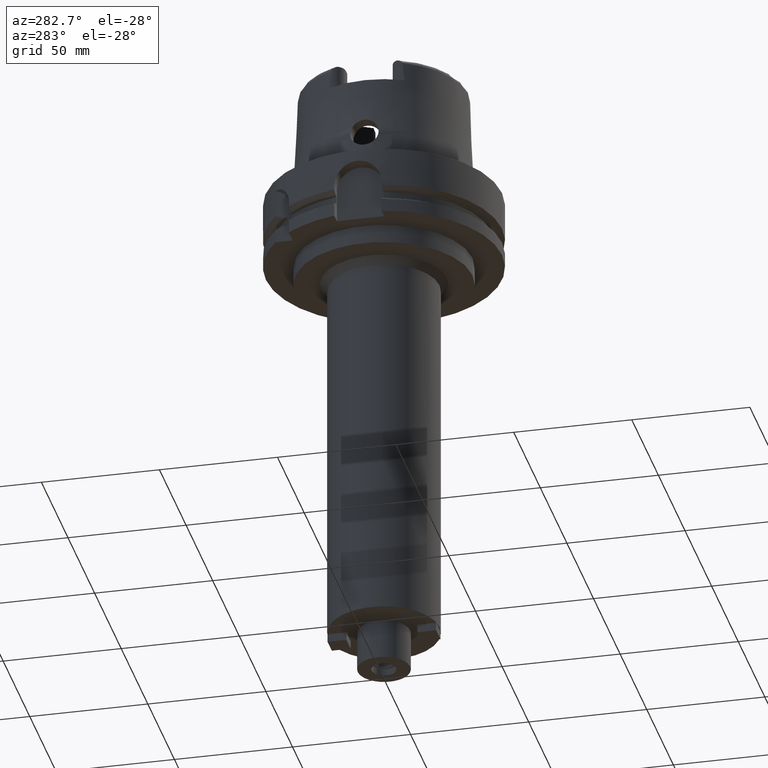
[diagram: clean part render]
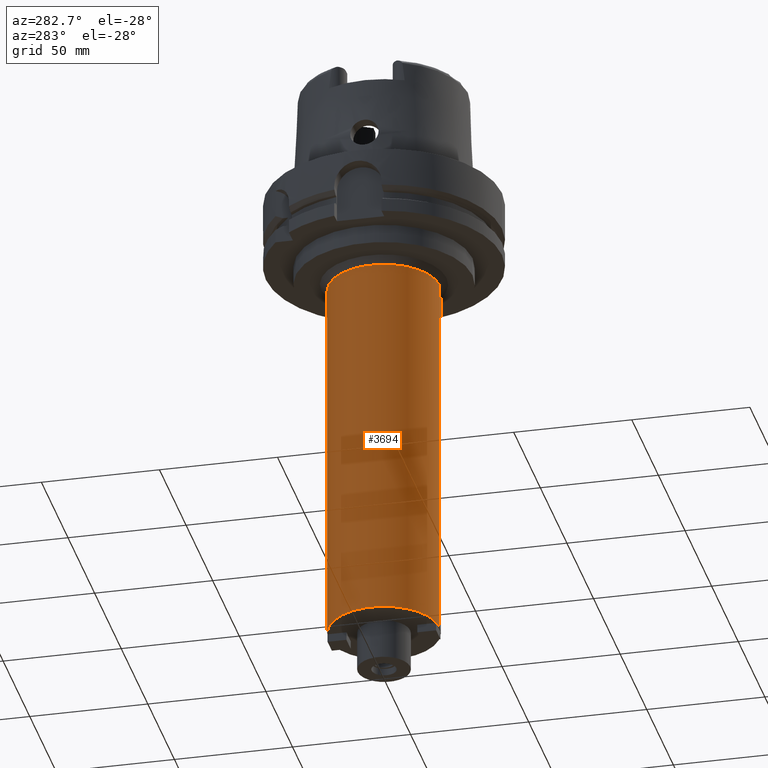
[diagram: same view with one face highlighted and labeled with its STEP entity id]
A machine part, auxiliary view. The second image highlights one B-rep face of the part: STEP entity #3694.
In plain terms, the highlighted cylindrical surface (partial cylindrical patch) has radius 23.5 mm, axis along (0, 0, 1).
Its self-contained STEP definition (entity closure, byte-faithful):
#1137=CARTESIAN_POINT('',(0.E0,0.E0,-2.E2));
#1138=DIRECTION('',(0.E0,0.E0,1.E0));
#1139=DIRECTION('',(0.E0,1.E0,0.E0));
#1140=AXIS2_PLACEMENT_3D('',#1137,#1138,#1139);
#1189=DIRECTION('',(0.E0,0.E0,-1.E0));
#1190=VECTOR('',#1189,1.6E2);
#1191=CARTESIAN_POINT('',(0.E0,2.35E1,-4.E1));
#1192=LINE('',#1191,#1190);
#1196=DIRECTION('',(0.E0,0.E0,-1.E0));
#1197=VECTOR('',#1196,1.6E2);
#1198=CARTESIAN_POINT('',(0.E0,-2.35E1,-4.E1));
#1199=LINE('',#1198,#1197);
#1210=CARTESIAN_POINT('',(0.E0,0.E0,-4.E1));
#1211=DIRECTION('',(0.E0,0.E0,-1.E0));
#1212=DIRECTION('',(0.E0,-1.E0,0.E0));
#1213=AXIS2_PLACEMENT_3D('',#1210,#1211,#1212);
#2608=CARTESIAN_POINT('',(0.E0,-2.35E1,-2.E2));
#2609=CARTESIAN_POINT('',(0.E0,2.35E1,-2.E2));
#2610=VERTEX_POINT('',#2608);
#2611=VERTEX_POINT('',#2609);
#2628=CARTESIAN_POINT('',(0.E0,2.35E1,-4.E1));
#2629=VERTEX_POINT('',#2628);
#2630=CARTESIAN_POINT('',(0.E0,-2.35E1,-4.E1));
#2631=VERTEX_POINT('',#2630);
#3682=CARTESIAN_POINT('',(0.E0,0.E0,-2.3035E2));
#3683=DIRECTION('',(0.E0,0.E0,1.E0));
#3684=DIRECTION('',(0.E0,1.E0,0.E0));
#3685=AXIS2_PLACEMENT_3D('',#3682,#3683,#3684);
#3686=CYLINDRICAL_SURFACE('',#3685,2.35E1);
#3687=ORIENTED_EDGE('',*,*,#3672,.F.);
#3689=ORIENTED_EDGE('',*,*,#3688,.F.);
#3690=ORIENTED_EDGE('',*,*,#3675,.T.);
#3691=ORIENTED_EDGE('',*,*,#3638,.F.);
#3692=EDGE_LOOP('',(#3687,#3689,#3690,#3691));
#3693=FACE_OUTER_BOUND('',#3692,.F.);
#1141=CIRCLE('',#1140,2.35E1);
#1214=CIRCLE('',#1213,2.35E1);
#3638=EDGE_CURVE('',#2611,#2610,#1141,.T.);
#3672=EDGE_CURVE('',#2629,#2611,#1192,.T.);
#3675=EDGE_CURVE('',#2631,#2610,#1199,.T.);
#3688=EDGE_CURVE('',#2631,#2629,#1214,.T.);
#3694=ADVANCED_FACE('',(#3693),#3686,.T.);